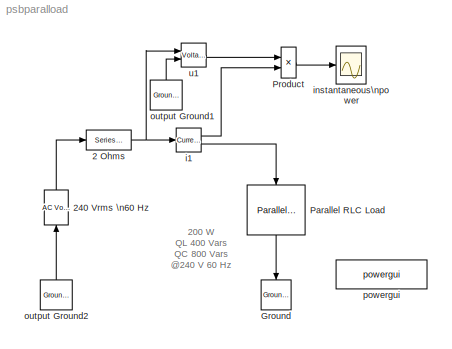
MODEL psbparalload
KIND model
BLOCK [Reference] 2 Ohms  REF=powerlib2/Elements/Series RLC Branch
  PSBOutputType = 1
  Ports = [1, 1]
  SourceBlock = powerlib2/Elements/Series RLC Branch
  SourceType = Series RLC Branch
  Tag = PoWeRsYsTeMbLoCk
  a = 2
  b = 0
  c = inf
  mesure = None
BLOCK [Reference] 240 Vrms \n60 Hz  REF=powerlib2/Electrical\nSources/AC Voltage Source
  A = 240*sqrt(2)
  Description = source block
  F = 60
  P = 0
  PSBOutputType = 1
  Ports = [1, 1]
  SourceBlock = powerlib2/Electrical\nSources/AC Voltage Source
  SourceType = AC Voltage Source
  Tag = PoWeRsYsTeMbLoCk
  mesure = None
  stime = 0
BLOCK [Reference] Ground  REF=powerlib2/Connectors/Ground (input)
  Ports = [1]
  SourceBlock = powerlib2/Connectors/Ground (input)
  SourceType = Ground
  Tag = PoWeRsYsTeMbLoCk
BLOCK [Reference] Parallel RLC Load  REF=powerlib2/Elements/Parallel RLC Load
  PSBOutputType = 1
  Ports = [1, 1]
  SourceBlock = powerlib2/Elements/Parallel RLC Load
  SourceType = Parallel RLC Load
  Tag = PoWeRsYsTeMbLoCk
  a = 240
  b = 60
  c = 2000
  d = 400
  e = 800
  mesure = None
BLOCK [Product] Product
  Ports = [2, 1]
BLOCK [Reference] i1  REF=powerlib2/Measurements/Current Measurement
  PSBOutputType = 01
  PSBequivalent = 0
  Ports = [1, 2]
  SourceBlock = powerlib2/Measurements/Current Measurement
  SourceType = Current Measurement
  Tag = PoWeRsYsTeMmEaSuReMeNt
BLOCK [Scope] instantaneous\npower
  DataFormat = Array
  NumInputPorts = 1
  Ports = [1]
  TickLabels = on
  TimeRange = 0.1
  YMax = 4000
  YMin = -4000
BLOCK [Reference] output Ground1  REF=powerlib2/Connectors/Ground (output)
  PSBOutputType = 1
  Ports = [0, 1]
  SourceBlock = powerlib2/Connectors/Ground (output)
  SourceType = Ground
  Tag = PoWeRsYsTeMbLoCk
BLOCK [Reference] output Ground2  REF=powerlib2/Connectors/Ground (output)
  PSBOutputType = 1
  Ports = [0, 1]
  SourceBlock = powerlib2/Connectors/Ground (output)
  SourceType = Ground
  Tag = PoWeRsYsTeMbLoCk
BLOCK [Reference] powergui  REF=powerlib2/powergui
  Frange = logspace(0,3,50)
  Ports = []
  SourceBlock = powerlib2/powergui
  SourceType = Unknown
  Xlog = off
  Ylog = off
  display = off
  matfilesaved = off
  save = off
  variable = ZData
BLOCK [Reference] u1  REF=powerlib2/Measurements/Voltage Measurement
  PSBOutputType = 0
  PSBequivalent = 1
  Ports = [2, 1]
  SourceBlock = powerlib2/Measurements/Voltage Measurement
  SourceType = Voltage Measurement
  Tag = PoWeRsYsTeMmEaSuReMeNt
ANNOTATION (root): 200 W\nQL 400 Vars\nQC 800 Vars\n@240 V 60 Hz
NET 2 Ohms:1 -> i1:1, u1:1
LINE 240 Vrms \n60 Hz:1 -> 2 Ohms:1
LINE Parallel RLC Load:1 -> Ground:1
LINE Product:1 -> instantaneous\npower:1
LINE i1:1 -> Product:2
LINE i1:2 -> Parallel RLC Load:1
LINE output Ground1:1 -> u1:2
LINE output Ground2:1 -> 240 Vrms \n60 Hz:1
LINE u1:1 -> Product:1
note: NET lines group one-source signal fan-out (src -> all destinations, sorted); 1:1 wires keep LINE
